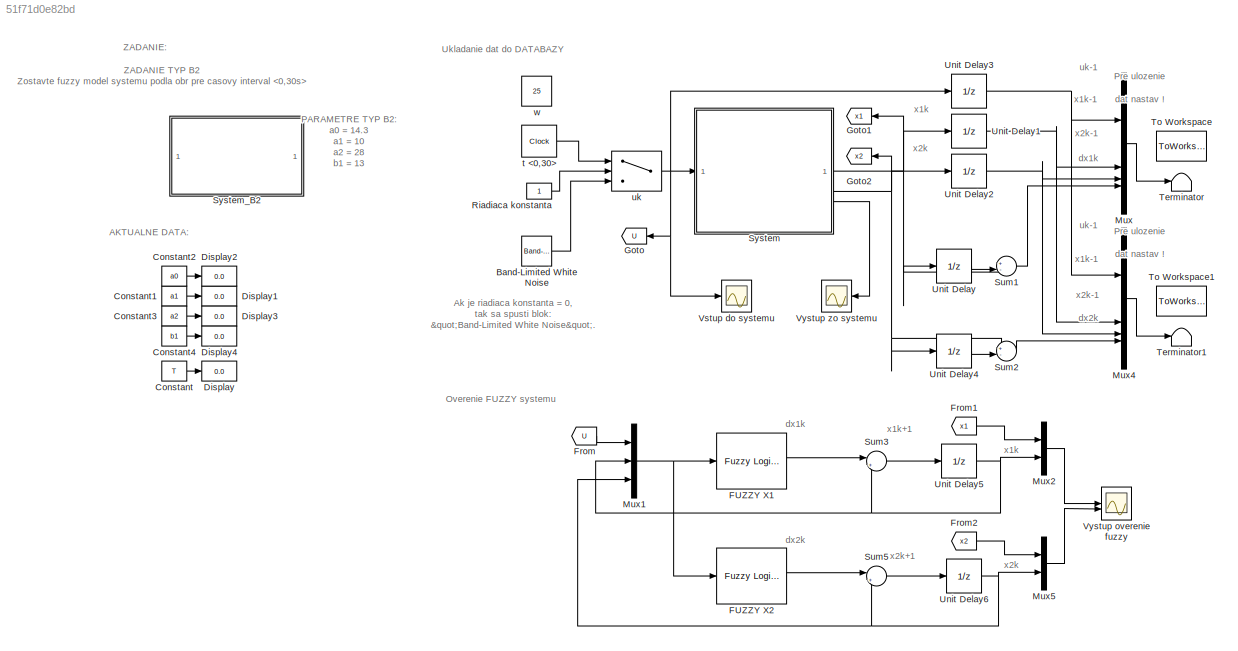
MODEL slx_51f71d0e82bd
KIND model
CONFIG AbsTol = auto
CONFIG EnableMultiTasking = off
CONFIG FixedStep = auto
CONFIG MaxStep = auto
CONFIG MinStep = auto
CONFIG RelTol = 1e-3
CONFIG SampleTimeConstraint = Unconstrained
CONFIG SolverName = VariableStepAuto
CONFIG StartTime = 0.0
CONFIG StopTime = 30
WORKSPACE source: mxarray member
WORKSPACE FSX1: sugfis (value not decoded)
WORKSPACE FSX2: sugfis (value not decoded)
WORKSPACE Sig: Simulink.Signal (value not decoded)
WORKSPACE T = 0.1
WORKSPACE a0 = 14.3
WORKSPACE a1 = 10
WORKSPACE a2 = 28
WORKSPACE b1 = 13
BLOCK [Reference] Band-Limited White Noise  REF=simulink/Sources/Band-Limited
White Noise
  SourceBlock = simulink/Sources/Band-Limited\nWhite Noise
  SourceType = Band-Limited White Noise.
BLOCK [Constant] Constant
  Value = T
BLOCK [Constant] Constant1
  Value = a1
BLOCK [Constant] Constant2
  Value = a0
BLOCK [Constant] Constant3
  Value = a2
BLOCK [Constant] Constant4
  Value = b1
BLOCK [Display] Display
  Decimation = 1
BLOCK [Display] Display1
  Decimation = 1
BLOCK [Display] Display2
  Decimation = 1
BLOCK [Display] Display3
  Decimation = 1
BLOCK [Display] Display4
  Decimation = 1
BLOCK [Reference] FUZZY X1  REF=fuzblock/Fuzzy Logic   (lib defined in mdl_858b3b3e7478)
Controller
  SourceBlock = fuzblock/Fuzzy Logic \nController
  SourceType = Fuzzy Inference System
BLOCK [Reference] FUZZY X2  REF=fuzblock/Fuzzy Logic   (lib defined in mdl_858b3b3e7478)
Controller
  SourceBlock = fuzblock/Fuzzy Logic \nController
  SourceType = Fuzzy Inference System
BLOCK [From] From
  GotoTag = U
BLOCK [From] From1
  GotoTag = x1
BLOCK [From] From2
  GotoTag = x2
BLOCK [Goto] Goto
  GotoTag = U
BLOCK [Goto] Goto1
  GotoTag = x1
BLOCK [Goto] Goto2
  GotoTag = x2
BLOCK [Mux] Mux
  DisplayOption = bar
BLOCK [Mux] Mux1
  DisplayOption = bar
  Inputs = 3
BLOCK [Mux] Mux2
  DisplayOption = bar
  Inputs = 2
BLOCK [Mux] Mux4
  DisplayOption = bar
BLOCK [Mux] Mux5
  DisplayOption = bar
  Inputs = 2
BLOCK [Constant] Riadiaca konstanta
BLOCK [Sum] Sum1
  Inputs = +-|
BLOCK [Sum] Sum2
  Inputs = +-|
BLOCK [Sum] Sum3
  Inputs = |++
BLOCK [Sum] Sum5
  Inputs = |++
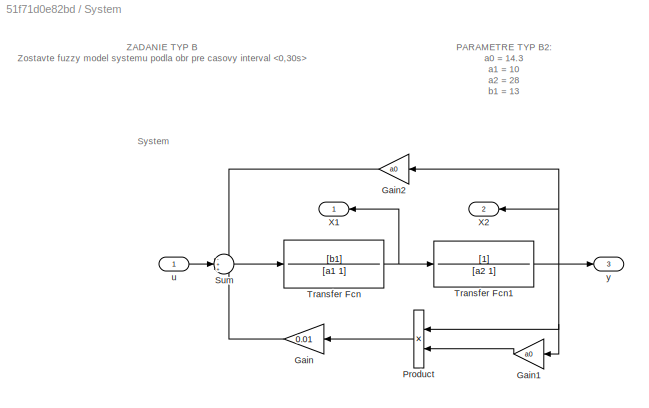
BLOCK [SubSystem] System
BLOCK [Gain] System/Gain
  Gain = 0.01
BLOCK [Gain] System/Gain1
  Gain = a0
BLOCK [Gain] System/Gain2
  Gain = a0
BLOCK [Product] System/Product
BLOCK [Sum] System/Sum
  Inputs = -++
BLOCK [TransferFcn] System/Transfer Fcn
  Denominator = [a1 1]
  Numerator = [b1]
BLOCK [TransferFcn] System/Transfer Fcn1
  Denominator = [a2 1]
BLOCK [Outport] System/X1
BLOCK [Outport] System/X2
  Port = 2
BLOCK [Inport] System/u
BLOCK [Outport] System/y
  Port = 3
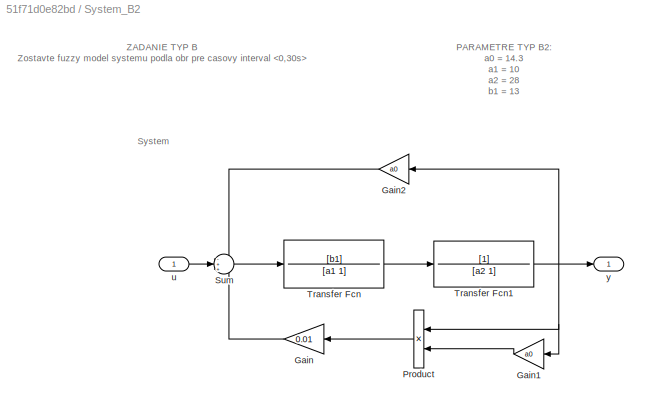
BLOCK [SubSystem] System_B2
BLOCK [Gain] System_B2/Gain
  Gain = 0.01
BLOCK [Gain] System_B2/Gain1
  Gain = a0
BLOCK [Gain] System_B2/Gain2
  Gain = a0
BLOCK [Product] System_B2/Product
BLOCK [Sum] System_B2/Sum
  Inputs = -++
BLOCK [TransferFcn] System_B2/Transfer Fcn
  Denominator = [a1 1]
  Numerator = [b1]
BLOCK [TransferFcn] System_B2/Transfer Fcn1
  Denominator = [a2 1]
BLOCK [Inport] System_B2/u
BLOCK [Outport] System_B2/y
BLOCK [Terminator] Terminator
BLOCK [Terminator] Terminator1
BLOCK [ToWorkspace] To Workspace
  FixptAsFi = on
  MaxDataPoints = inf
  SampleTime = 0.1
  VariableName = DBdX1
BLOCK [ToWorkspace] To Workspace1
  FixptAsFi = on
  MaxDataPoints = inf
  SampleTime = 0.1
  VariableName = DBdX2
BLOCK [UnitDelay] Unit Delay
  SampleTime = T
BLOCK [UnitDelay] Unit Delay1
  SampleTime = T
BLOCK [UnitDelay] Unit Delay2
  SampleTime = T
BLOCK [UnitDelay] Unit Delay3
  SampleTime = T
BLOCK [UnitDelay] Unit Delay4
  SampleTime = T
BLOCK [UnitDelay] Unit Delay5
  SampleTime = T
BLOCK [UnitDelay] Unit Delay6
  SampleTime = T
BLOCK [Scope] Vstup do systemu
  Floating = off
  NumInputPorts = 1
  ScopeSpecificationString = Simulink.scopes.TimeScopeBlockCfg('CurrentConfiguration', extmgr.ConfigurationSet(extmgr.Configuration('Core','General UI',true,'FigureColor',[1 1 1]),extmgr.Configuration('Core','Source UI',true),extmgr.Configuration('Sources','WiredSimulink',true,'DataLoggingVariableName','ScopeData1'),extmgr.Configuration('Visuals','Time Domain',true,'SerializedDisplays',{struct('MinYLimReal','-3.75','MaxYLimRe...<+1536ch>
BLOCK [Scope] Vystup overenie fuzzy
  Floating = off
  NumInputPorts = 2
  ScopeSpecificationString = Simulink.scopes.TimeScopeBlockCfg('CurrentConfiguration', extmgr.ConfigurationSet(extmgr.Configuration('Core','General UI',true,'FigureColor',[1 1 1]),extmgr.Configuration('Core','Source UI',true),extmgr.Configuration('Sources','WiredSimulink',true,'DataLoggingVariableName','ScopeData1'),extmgr.Configuration('Visuals','Time Domain',true,'SerializedDisplays',{struct('MinYLimReal','-0.53995','MaxYLi...<+2445ch>
BLOCK [Scope] Vystup zo systemu
  Floating = off
  NumInputPorts = 1
  ScopeSpecificationString = Simulink.scopes.TimeScopeBlockCfg('CurrentConfiguration', extmgr.ConfigurationSet(extmgr.Configuration('Core','General UI',true,'FigureColor',[1 1 1]),extmgr.Configuration('Core','Source UI',true),extmgr.Configuration('Sources','WiredSimulink',true),extmgr.Configuration('Visuals','Time Domain',true,'SerializedDisplays',{struct('MinYLimReal','-0.26581','MaxYLimReal','2.39232','YLabelReal','','MinYL...<+1531ch>
BLOCK [Clock] t <0,30>
  DisplayTime = on
BLOCK [Switch] uk
  Criteria = u2 ~= 0
  InputSameDT = off
  SaturateOnIntegerOverflow = off
  Threshold = 3
BLOCK [Constant] w
  Value = 25
ANNOTATION (root): Pre ulozenie dat nastav !
ANNOTATION (root): Ak je riadiaca konstanta = 0 , tak sa spusti blok: " Band-Limited White Noise ".
ANNOTATION (root): AKTUALNE DATA:
ANNOTATION (root): Overenie FUZZY systemu
ANNOTATION (root): PARAMETRE TYP B2: a0 = 14.3 a1 = 10 a2 = 28 b1 = 13
ANNOTATION (root): Ukladanie dat do DATABAZY
ANNOTATION (root): ZADANIE TYP B2 Zostavte fuzzy model systemu podla obr pre casovy interval
ANNOTATION (root): ZADANIE:
ANNOTATION (root): dx1k
ANNOTATION (root): dx2k
ANNOTATION (root): uk-1
ANNOTATION (root): x1k
ANNOTATION (root): x1k+1
ANNOTATION (root): x1k-1
ANNOTATION (root): x2k
ANNOTATION (root): x2k+1
ANNOTATION (root): x2k-1
ANNOTATION System: PARAMETRE TYP B2: a0 = 14.3 a1 = 10 a2 = 28 b1 = 13
ANNOTATION System: System
ANNOTATION System: ZADANIE TYP B Zostavte fuzzy model systemu podla obr pre casovy interval
ANNOTATION System_B2: PARAMETRE TYP B2: a0 = 14.3 a1 = 10 a2 = 28 b1 = 13
ANNOTATION System_B2: System
ANNOTATION System_B2: ZADANIE TYP B Zostavte fuzzy model systemu podla obr pre casovy interval
LINE Band-Limited White Noise:1 -> uk:3
LINE Constant1:1 -> Display1:1
LINE Constant2:1 -> Display2:1
LINE Constant3:1 -> Display3:1
LINE Constant4:1 -> Display4:1
LINE Constant:1 -> Display:1
LINE FUZZY X1:1 -> Sum3:1
LINE FUZZY X2:1 -> Sum5:1
LINE From1:1 -> Mux2:1
LINE From2:1 -> Mux5:1
LINE From:1 -> Mux1:1
NET Mux1:1 -> FUZZY X1:1, FUZZY X2:1
LINE Mux2:1 -> Vystup overenie fuzzy:1
LINE Mux4:1 -> Terminator1:1
LINE Mux5:1 -> Vystup overenie fuzzy:2
LINE Mux:1 -> Terminator:1
LINE Riadiaca konstanta:1 -> uk:2
LINE Sum1:1 -> Mux:4
LINE Sum2:1 -> Mux4:4
LINE Sum3:1 -> Unit Delay5:1
LINE Sum5:1 -> Unit Delay6:1
LINE System/Gain1:1 -> System/Product:2
LINE System/Gain2:1 -> System/Sum:1
LINE System/Gain:1 -> System/Sum:3
LINE System/Product:1 -> System/Gain:1
LINE System/Sum:1 -> System/Transfer Fcn:1
NET System/Transfer Fcn1:1 -> System/Gain1:1, System/Gain2:1, System/Product:1, System/X2:1, System/y:1
NET System/Transfer Fcn:1 -> System/Transfer Fcn1:1, System/X1:1
LINE System/u:1 -> System/Sum:2
NET System:1 -> Goto1:1, Sum1:1, Unit Delay1:1, Unit Delay:1
NET System:2 -> Goto2:1, Sum2:1, Unit Delay2:1, Unit Delay4:1
LINE System:3 -> Vystup zo systemu:1
LINE System_B2/Gain1:1 -> System_B2/Product:2
LINE System_B2/Gain2:1 -> System_B2/Sum:1
LINE System_B2/Gain:1 -> System_B2/Sum:3
LINE System_B2/Product:1 -> System_B2/Gain:1
LINE System_B2/Sum:1 -> System_B2/Transfer Fcn:1
NET System_B2/Transfer Fcn1:1 -> System_B2/Gain1:1, System_B2/Gain2:1, System_B2/Product:1, System_B2/y:1
LINE System_B2/Transfer Fcn:1 -> System_B2/Transfer Fcn1:1
LINE System_B2/u:1 -> System_B2/Sum:2
NET Unit Delay1:1 -> Mux4:2, Mux:2
NET Unit Delay2:1 -> Mux4:3, Mux:3
NET Unit Delay3:1 -> Mux4:1, Mux:1
LINE Unit Delay4:1 -> Sum2:2
NET Unit Delay5:1 -> Mux1:2, Mux2:2, Sum3:2
NET Unit Delay6:1 -> Mux1:3, Mux5:2, Sum5:2
LINE Unit Delay:1 -> Sum1:2
LINE t <0,30>:1 -> uk:1
NET uk:1 -> Goto:1, System:1, Unit Delay3:1, Vstup do systemu:1
note: NET lines group one-source signal fan-out (src -> all destinations, sorted); 1:1 wires keep LINE
